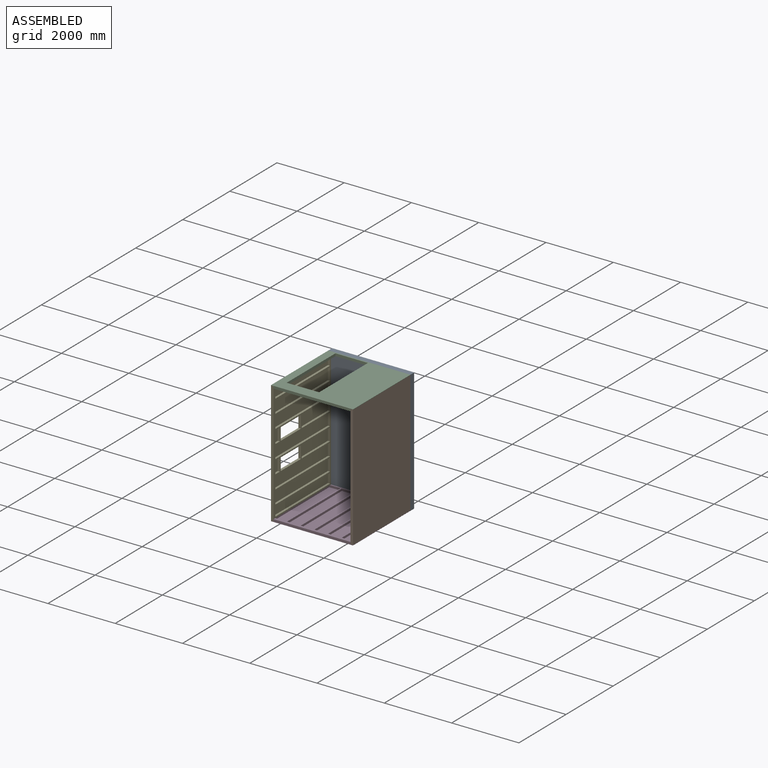
[diagram: assembled view]
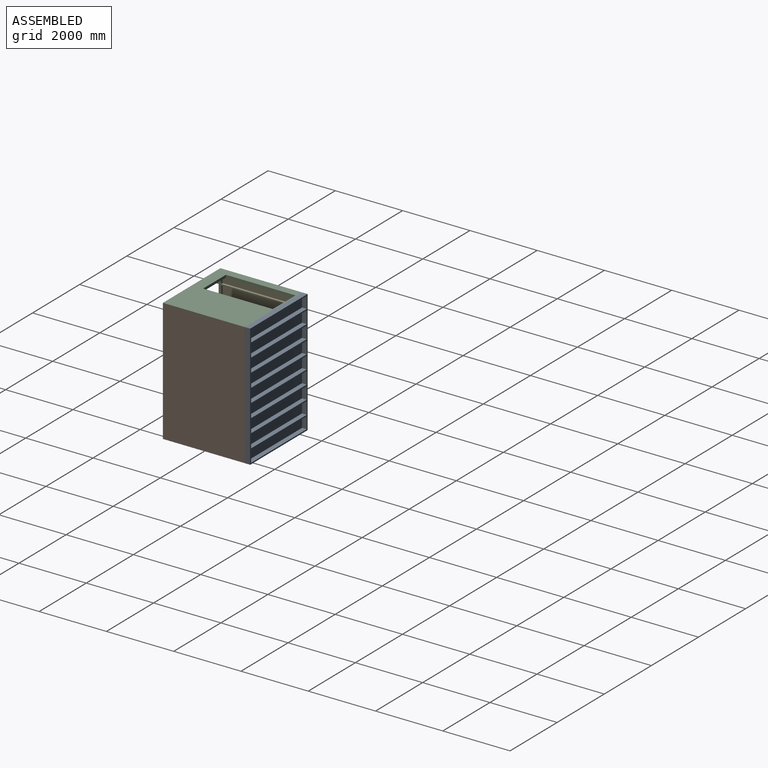
[diagram: assembled view, second angle]
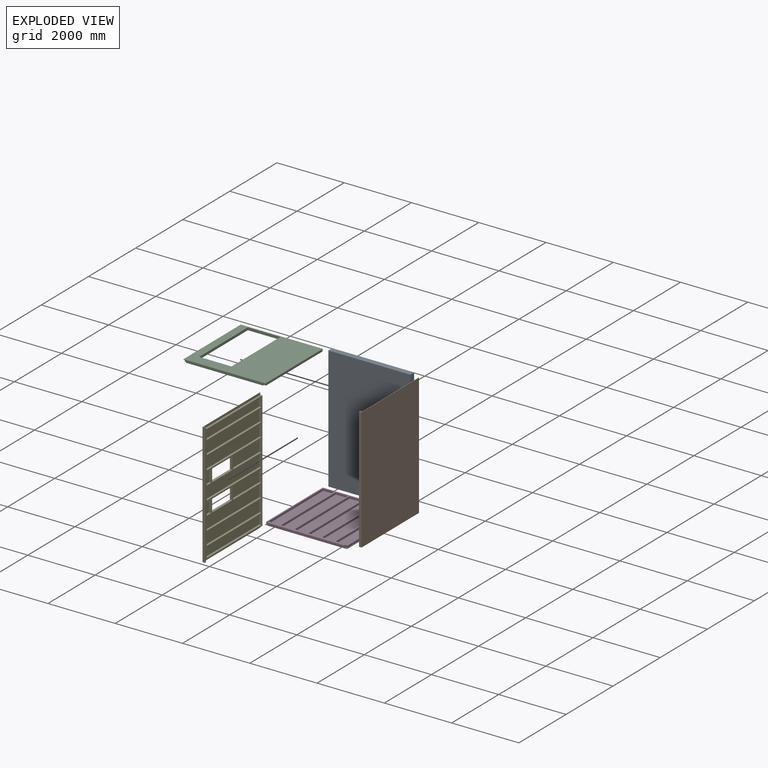
[diagram: exploded view]
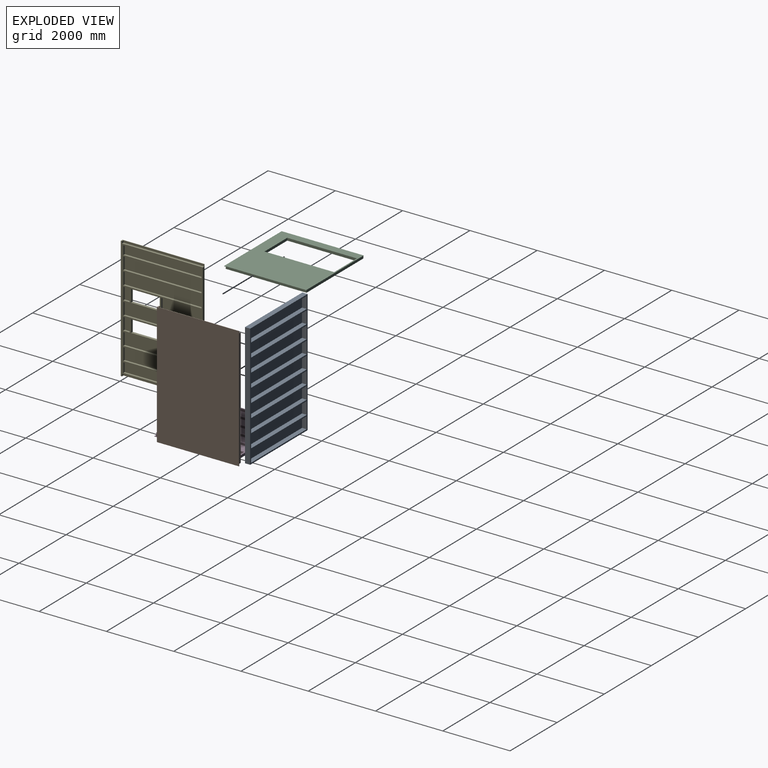
[diagram: exploded view, second angle]
ASSEMBLY  parts=5 mates=12
PART A: 51 faces, bbox 2438.4x3657.6x155.6 mm
  f0: plane 3657.6x155.58mm, normal (-1,0,0), area 569031.1mm2, adj f1,f3,f4,f41
  f1: plane 2438.4x155.58mm, normal (0,-1,0), area 379354.1mm2, adj f0,f2,f4,f41
  f2: plane 3657.6x155.58mm, normal (1,0,0), area 569031.1mm2, adj f1,f3,f4,f41
  f3: plane 2438.4x155.58mm, normal (0,1,0), area 379354.1mm2, adj f0,f2,f4,f41
  f4: plane 3657.6x2438.4mm, normal (0,0,1), area 8918691.8mm2, adj f0,f1,f2,f3
  f5: plane 2362.2x139.7mm, normal (0,-1,0), area 329999.3mm2, adj f6,f40,f41,f42
  f6: plane 349.25x139.7mm, normal (1,0,0), area 48790.2mm2, adj f5,f7,f41,f42
  f7: plane 2362.2x139.7mm, normal (0,1,0), area 329999.3mm2, adj f6,f40,f41,f42
  f8: plane 368.3x139.7mm, normal (1,0,0), area 51451.5mm2, adj f9,f32,f41,f50
  f9: plane 2362.2x139.7mm, normal (0,1,0), area 329999.3mm2, adj f8,f10,f41,f50
  f10: plane 368.3x139.7mm, normal (-1,0,0), area 51451.5mm2, adj f9,f32,f41,f50
  f11: plane 368.3x139.7mm, normal (1,0,0), area 51451.5mm2, adj f12,f33,f41,f49
  f12: plane 2362.2x139.7mm, normal (0,1,0), area 329999.3mm2, adj f11,f13,f41,f49
  f13: plane 368.3x139.7mm, normal (-1,0,0), area 51451.5mm2, adj f12,f33,f41,f49
  f14: plane 368.3x139.7mm, normal (1,0,0), area 51451.5mm2, adj f15,f34,f41,f48
  f15: plane 2362.2x139.7mm, normal (0,1,0), area 329999.3mm2, adj f14,f16,f41,f48
  f16: plane 368.3x139.7mm, normal (-1,0,0), area 51451.5mm2, adj f15,f34,f41,f48
  f17: plane 368.3x139.7mm, normal (1,0,0), area 51451.5mm2, adj f18,f35,f41,f47
  f18: plane 2362.2x139.7mm, normal (0,1,0), area 329999.3mm2, adj f17,f19,f41,f47
  f19: plane 368.3x139.7mm, normal (-1,0,0), area 51451.5mm2, adj f18,f35,f41,f47
  f20: plane 368.3x139.7mm, normal (1,0,0), area 51451.5mm2, adj f21,f36,f41,f46
  f21: plane 2362.2x139.7mm, normal (0,1,0), area 329999.3mm2, adj f20,f22,f41,f46
  f22: plane 368.3x139.7mm, normal (-1,0,0), area 51451.5mm2, adj f21,f36,f41,f46
  f23: plane 368.3x139.7mm, normal (1,0,0), area 51451.5mm2, adj f24,f37,f41,f45
  f24: plane 2362.2x139.7mm, normal (0,1,0), area 329999.3mm2, adj f23,f25,f41,f45
  f25: plane 368.3x139.7mm, normal (-1,0,0), area 51451.5mm2, adj f24,f37,f41,f45
  f26: plane 368.3x139.7mm, normal (1,0,0), area 51451.5mm2, adj f27,f38,f41,f44
  f27: plane 2362.2x139.7mm, normal (0,1,0), area 329999.3mm2, adj f26,f28,f41,f44
  f28: plane 368.3x139.7mm, normal (-1,0,0), area 51451.5mm2, adj f27,f38,f41,f44
  f29: plane 349.25x139.7mm, normal (1,0,0), area 48790.2mm2, adj f30,f39,f41,f43
  f30: plane 2362.2x139.7mm, normal (0,1,0), area 329999.3mm2, adj f29,f31,f41,f43
  f31: plane 349.25x139.7mm, normal (-1,0,0), area 48790.2mm2, adj f30,f39,f41,f43
  f32: plane 2362.2x139.7mm, normal (0,-1,0), area 329999.3mm2, adj f8,f10,f41,f50
  f33: plane 2362.2x139.7mm, normal (0,-1,0), area 329999.3mm2, adj f11,f13,f41,f49
  f34: plane 2362.2x139.7mm, normal (0,-1,0), area 329999.3mm2, adj f14,f16,f41,f48
  f35: plane 2362.2x139.7mm, normal (0,-1,0), area 329999.3mm2, adj f17,f19,f41,f47
  f36: plane 2362.2x139.7mm, normal (0,-1,0), area 329999.3mm2, adj f20,f22,f41,f46
  f37: plane 2362.2x139.7mm, normal (0,-1,0), area 329999.3mm2, adj f23,f25,f41,f45
  f38: plane 2362.2x139.7mm, normal (0,-1,0), area 329999.3mm2, adj f26,f28,f41,f44
  f39: plane 2362.2x139.7mm, normal (0,-1,0), area 329999.3mm2, adj f29,f31,f41,f43
  f40: plane 349.25x139.7mm, normal (-1,0,0), area 48790.2mm2, adj f5,f7,f41,f42
  f41: plane 3657.6x2438.4mm, normal (0,0,-1), area 1178707.3mm2, adj f0,f1,f2,f3,f5,f6,f7,f8
  f42: plane 2362.2x349.25mm, normal (0,0,-1), area 824998.4mm2, adj f5,f6,f7,f40
  f43: plane 2362.2x349.25mm, normal (0,0,-1), area 824998.3mm2, adj f29,f30,f31,f39
  f44: plane 2362.2x368.3mm, normal (0,0,-1), area 869998.3mm2, adj f26,f27,f28,f38
  f45: plane 2362.2x368.3mm, normal (0,0,-1), area 869998.3mm2, adj f23,f24,f25,f37
  f46: plane 2362.2x368.3mm, normal (0,0,-1), area 869998.3mm2, adj f20,f21,f22,f36
  f47: plane 2362.2x368.3mm, normal (0,0,-1), area 869998.3mm2, adj f17,f18,f19,f35
  f48: plane 2362.2x368.3mm, normal (0,0,-1), area 869998.3mm2, adj f14,f15,f16,f34
  f49: plane 2362.2x368.3mm, normal (0,0,-1), area 869998.3mm2, adj f11,f12,f13,f33
  f50: plane 2362.2x368.3mm, normal (0,0,-1), area 869998.3mm2, adj f8,f9,f10,f32
PART B: 57 faces, bbox 3632.2x75.4x2438.4 mm
  f0: plane 2400.3x63.5mm, normal (0,1,0), area 152419mm2, adj f2,f3,f36,f37
  f1: plane 2400.3x63.5mm, normal (0,1,0), area 152419mm2, adj f3,f4,f34,f35
  f2: plane 2438.4x75.41mm, normal (-1,0,0), area 31451.6mm2, adj f0,f3,f5,f6,f37,f47
  f3: plane 3632.2x75.41mm, normal (0,0,-1), area 265826.1mm2, adj f0,f1,f2,f4,f6,f35,f36,f47
  f4: plane 2438.4x75.41mm, normal (1,0,0), area 31451.6mm2, adj f1,f3,f5,f6,f34,f47
  f5: plane 3632.2x75.41mm, normal (0,0,1), area 273890.6mm2, adj f2,f4,f6,f47
  f6: plane 3632.2x2438.4mm, normal (0,-1,0), area 8856756.5mm2, adj f2,f3,f4,f5
  f7: plane 2324.1x63.5mm, normal (1,0,0), area 147580.3mm2, adj f8,f46,f47,f48
  f8: plane 368.3x63.5mm, normal (0,0,1), area 23387.1mm2, adj f7,f9,f47,f48
  f9: plane 2324.1x63.5mm, normal (-1,0,0), area 147580.3mm2, adj f8,f46,f47,f48
  f10: plane 368.3x63.5mm, normal (0,0,1), area 23387.1mm2, adj f11,f38,f47,f56
  f11: plane 2324.1x63.5mm, normal (-1,0,0), area 147580.3mm2, adj f10,f12,f47,f56
  f12: plane 368.3x63.5mm, normal (0,0,-1), area 23387.1mm2, adj f11,f38,f47,f56
  f13: plane 368.3x63.5mm, normal (0,0,1), area 23387.1mm2, adj f14,f39,f47,f55
  f14: plane 2324.1x63.5mm, normal (-1,0,0), area 147580.3mm2, adj f13,f15,f47,f55
  f15: plane 368.3x63.5mm, normal (0,0,-1), area 23387.1mm2, adj f14,f39,f47,f55
  f16: plane 368.3x63.5mm, normal (0,0,1), area 23387.1mm2, adj f17,f40,f47,f54
  f17: plane 2324.1x63.5mm, normal (-1,0,0), area 147580.3mm2, adj f16,f18,f47,f54
  f18: plane 368.3x63.5mm, normal (0,0,-1), area 23387.1mm2, adj f17,f40,f47,f54
  f19: plane 368.3x63.5mm, normal (0,0,1), area 23387mm2, adj f20,f41,f47,f53
  f20: plane 2324.1x63.5mm, normal (-1,0,0), area 147580.3mm2, adj f19,f21,f47,f53
  f21: plane 368.3x63.5mm, normal (0,0,-1), area 23387mm2, adj f20,f41,f47,f53
  f22: plane 368.3x63.5mm, normal (0,0,1), area 23387.1mm2, adj f23,f42,f47,f52
  f23: plane 2324.1x63.5mm, normal (-1,0,0), area 147580.3mm2, adj f22,f24,f47,f52
  f24: plane 368.3x63.5mm, normal (0,0,-1), area 23387.1mm2, adj f23,f42,f47,f52
  f25: plane 368.3x63.5mm, normal (0,0,1), area 23387mm2, adj f26,f43,f47,f51
  f26: plane 2324.1x63.5mm, normal (-1,0,0), area 147580.3mm2, adj f25,f27,f47,f51
  f27: plane 368.3x63.5mm, normal (0,0,-1), area 23387mm2, adj f26,f43,f47,f51
  f28: plane 2324.1x63.5mm, normal (1,0,0), area 147580.3mm2, adj f29,f44,f47,f50
  f29: plane 285.75x63.5mm, normal (0,0,1), area 18145.1mm2, adj f28,f30,f47,f50
  f30: plane 2324.1x63.5mm, normal (-1,0,0), area 147580.3mm2, adj f29,f44,f47,f50
  f31: plane 260.35x63.5mm, normal (0,0,1), area 16532.2mm2, adj f32,f45,f47,f49
  f32: plane 2324.1x63.5mm, normal (-1,0,0), area 147580.3mm2, adj f31,f33,f47,f49
  f33: plane 260.35x63.5mm, normal (0,0,-1), area 16532.2mm2, adj f32,f45,f47,f49
  f34: plane 63.5x63.5mm, normal (0,0,-1), area 4032.2mm2, adj f1,f4,f35,f47
  f35: plane 2400.3x63.5mm, normal (1,0,0), area 152419mm2, adj f1,f3,f34,f47
  f36: plane 2400.3x63.5mm, normal (-1,0,0), area 152419mm2, adj f0,f3,f37,f47
  f37: plane 63.5x63.5mm, normal (0,0,-1), area 4032.3mm2, adj f0,f2,f36,f47
  f38: plane 2324.1x63.5mm, normal (1,0,0), area 147580.3mm2, adj f10,f12,f47,f56
  f39: plane 2324.1x63.5mm, normal (1,0,0), area 147580.3mm2, adj f13,f15,f47,f55
  f40: plane 2324.1x63.5mm, normal (1,0,0), area 147580.3mm2, adj f16,f18,f47,f54
  f41: plane 2324.1x63.5mm, normal (1,0,0), area 147580.3mm2, adj f19,f21,f47,f53
  f42: plane 2324.1x63.5mm, normal (1,0,0), area 147580.3mm2, adj f22,f24,f47,f52
  f43: plane 2324.1x63.5mm, normal (1,0,0), area 147580.3mm2, adj f25,f27,f47,f51
  f44: plane 285.75x63.5mm, normal (0,0,-1), area 18145.1mm2, adj f28,f30,f47,f50
  f45: plane 2324.1x63.5mm, normal (1,0,0), area 147580.3mm2, adj f31,f33,f47,f49
  f46: plane 368.3x63.5mm, normal (0,0,-1), area 23387.1mm2, adj f7,f9,f47,f48
  f47: plane 3632.2x2438.4mm, normal (0,1,0), area 1290965.2mm2, adj f2,f3,f4,f5,f7,f8,f9,f10
  f48: plane 2324.1x368.3mm, normal (0,1,0), area 855966mm2, adj f7,f8,f9,f46
  f49: plane 2324.1x260.35mm, normal (0,1,0), area 605079.4mm2, adj f31,f32,f33,f45
  f50: plane 2324.1x285.75mm, normal (0,1,0), area 664111.6mm2, adj f28,f29,f30,f44
  f51: plane 2324.1x368.3mm, normal (0,1,0), area 855966mm2, adj f25,f26,f27,f43
  f52: plane 2324.1x368.3mm, normal (0,1,0), area 855966mm2, adj f22,f23,f24,f42
  f53: plane 2324.1x368.3mm, normal (0,1,0), area 855966mm2, adj f19,f20,f21,f41
  f54: plane 2324.1x368.3mm, normal (0,1,0), area 855966mm2, adj f16,f17,f18,f40
  f55: plane 2324.1x368.3mm, normal (0,1,0), area 855966mm2, adj f13,f14,f15,f39
  f56: plane 2324.1x368.3mm, normal (0,1,0), area 855966mm2, adj f10,f11,f12,f38
PART C: 53 faces, bbox 2438.4x75.4x2438.4 mm
  f0: plane 2438.4x75.41mm, normal (0,1,0), area 31451.6mm2, adj f2,f3,f5,f31,f32,f33
  f1: plane 2438.4x75.41mm, normal (0,1,0), area 31451.6mm2, adj f3,f4,f5,f34,f35,f36
  f2: plane 2438.4x11.91mm, normal (-1,0,0), area 29032.2mm2, adj f0,f3,f5,f6
  f3: plane 2438.4x75.41mm, normal (0,0,-1), area 182358.5mm2, adj f0,f1,f2,f4,f6,f31,f36,f45
  f4: plane 2438.4x11.91mm, normal (1,0,0), area 29032.2mm2, adj f1,f3,f5,f6
  f5: plane 2438.4x75.41mm, normal (0,0,1), area 174294mm2, adj f0,f1,f2,f4,f6,f33,f34,f45
  f6: plane 2438.4x2438.4mm, normal (0,-1,0), area 3947734mm2, adj f2,f3,f4,f5,f16,f17,f18,f39
  f7: plane 215.9x63.5mm, normal (-1,0,0), area 13709.6mm2, adj f8,f44,f45,f52
  f8: plane 298.45x63.5mm, normal (0,0,-1), area 18951.6mm2, adj f7,f9,f45,f52
  f9: plane 215.9x63.5mm, normal (1,0,0), area 13709.6mm2, adj f8,f44,f45,f52
  f10: plane 215.9x63.5mm, normal (-1,0,0), area 13709.6mm2, adj f11,f37,f45,f51
  f11: plane 292.1x63.5mm, normal (0,0,-1), area 18548.4mm2, adj f10,f12,f45,f51
  f12: plane 215.9x63.5mm, normal (1,0,0), area 13709.6mm2, adj f11,f37,f45,f51
  f13: plane 215.9x63.5mm, normal (-1,0,0), area 13709.6mm2, adj f14,f38,f45,f50
  f14: plane 298.45x63.5mm, normal (0,0,-1), area 18951.6mm2, adj f13,f15,f45,f50
  f15: plane 215.9x63.5mm, normal (1,0,0), area 13709.6mm2, adj f14,f38,f45,f50
  f16: plane 2070.1x75.41mm, normal (1,0,0), area 156098.5mm2, adj f6,f17,f39,f45
  f17: plane 965.2x75.41mm, normal (0,0,1), area 72782.1mm2, adj f6,f16,f18,f45
  f18: plane 2070.1x75.41mm, normal (-1,0,0), area 156098.5mm2, adj f6,f17,f39,f45
  f19: plane 330.2x63.5mm, normal (0,0,1), area 20967.7mm2, adj f20,f40,f45,f49
  f20: plane 2324.1x63.5mm, normal (-1,0,0), area 147580.3mm2, adj f19,f21,f45,f49
  f21: plane 330.2x63.5mm, normal (0,0,-1), area 20967.7mm2, adj f20,f40,f45,f49
  f22: plane 368.3x63.5mm, normal (0,0,1), area 23387mm2, adj f23,f41,f45,f48
  f23: plane 2324.1x63.5mm, normal (-1,0,0), area 147580.3mm2, adj f22,f24,f45,f48
  f24: plane 368.3x63.5mm, normal (0,0,-1), area 23387mm2, adj f23,f41,f45,f48
  f25: plane 146.84x63.5mm, normal (0,0,1), area 9324.6mm2, adj f26,f42,f45,f47
  f26: plane 2324.1x63.5mm, normal (-1,0,0), area 147580.3mm2, adj f25,f27,f45,f47
  f27: plane 146.84x63.5mm, normal (0,0,-1), area 9324.6mm2, adj f26,f42,f45,f47
  f28: plane 2324.1x63.5mm, normal (1,0,0), area 147580.3mm2, adj f29,f43,f45,f46
  f29: plane 337.34x63.5mm, normal (0,0,1), area 21421.3mm2, adj f28,f30,f45,f46
  f30: plane 2324.1x63.5mm, normal (-1,0,0), area 147580.3mm2, adj f29,f43,f45,f46
  f31: plane 2400.3x63.5mm, normal (-1,0,0), area 152419mm2, adj f0,f3,f32,f45
  f32: plane 63.5x63.5mm, normal (0,0,1), area 4032.2mm2, adj f0,f31,f33,f45
  f33: plane 63.5x38.1mm, normal (-1,0,0), area 2419.4mm2, adj f0,f5,f32,f45
  f34: plane 63.5x38.1mm, normal (1,0,0), area 2419.4mm2, adj f1,f5,f35,f45
  f35: plane 63.5x63.5mm, normal (0,0,1), area 4032.3mm2, adj f1,f34,f36,f45
  f36: plane 2400.3x63.5mm, normal (1,0,0), area 152419mm2, adj f1,f3,f35,f45
  f37: plane 292.1x63.5mm, normal (0,0,1), area 18548.4mm2, adj f10,f12,f45,f51
  f38: plane 298.45x63.5mm, normal (0,0,1), area 18951.6mm2, adj f13,f15,f45,f50
  f39: plane 965.2x75.41mm, normal (0,0,-1), area 72782.1mm2, adj f6,f16,f18,f45
  f40: plane 2324.1x63.5mm, normal (1,0,0), area 147580.3mm2, adj f19,f21,f45,f49
  f41: plane 2324.1x63.5mm, normal (1,0,0), area 147580.3mm2, adj f22,f24,f45,f48
  f42: plane 2324.1x63.5mm, normal (1,0,0), area 147580.3mm2, adj f25,f27,f45,f47
  f43: plane 337.34x63.5mm, normal (0,0,-1), area 21421.3mm2, adj f28,f30,f45,f46
  f44: plane 298.45x63.5mm, normal (0,0,1), area 18951.6mm2, adj f7,f9,f45,f52
  f45: plane 2438.4x2414.59mm, normal (0,1,0), area 944211.8mm2, adj f3,f5,f7,f8,f9,f10,f11,f12
  f46: plane 2324.1x337.34mm, normal (0,1,0), area 784020.6mm2, adj f28,f29,f30,f43
  f47: plane 2324.1x146.84mm, normal (0,1,0), area 341279.6mm2, adj f25,f26,f27,f42
  f48: plane 2324.1x368.3mm, normal (0,1,0), area 855966mm2, adj f22,f23,f24,f41
  f49: plane 2324.1x330.2mm, normal (0,1,0), area 767417.8mm2, adj f19,f20,f21,f40
  f50: plane 298.45x215.9mm, normal (0,1,0), area 64435.4mm2, adj f13,f14,f15,f38
  f51: plane 292.1x215.9mm, normal (0,1,0), area 63064.4mm2, adj f10,f11,f12,f37
  f52: plane 298.45x215.9mm, normal (0,1,0), area 64435.4mm2, adj f7,f8,f9,f44
PART D: 44 faces, bbox 2438.4x75.4x2438.4 mm
  f0: plane 2438.4x75.41mm, normal (0,1,0), area 31451.6mm2, adj f2,f3,f5,f25,f26,f27
  f1: plane 2438.4x75.41mm, normal (0,1,0), area 31451.6mm2, adj f3,f4,f5,f28,f29,f30
  f2: plane 2438.4x11.91mm, normal (-1,0,0), area 29032.2mm2, adj f0,f3,f5,f6
  f3: plane 2438.4x75.41mm, normal (0,0,-1), area 182358.5mm2, adj f0,f1,f2,f4,f6,f25,f30,f37
  f4: plane 2438.4x11.91mm, normal (1,0,0), area 29032.2mm2, adj f1,f3,f5,f6
  f5: plane 2438.4x75.41mm, normal (0,0,1), area 174294mm2, adj f0,f1,f2,f4,f6,f27,f28,f37
  f6: plane 2438.4x2438.4mm, normal (0,-1,0), area 5945794.6mm2, adj f2,f3,f4,f5
  f7: plane 2324.1x63.5mm, normal (1,0,0), area 147580.3mm2, adj f8,f36,f37,f38
  f8: plane 368.3x63.5mm, normal (0,0,1), area 23387.1mm2, adj f7,f9,f37,f38
  f9: plane 2324.1x63.5mm, normal (-1,0,0), area 147580.3mm2, adj f8,f36,f37,f38
  f10: plane 368.3x63.5mm, normal (0,0,1), area 23387mm2, adj f11,f31,f37,f43
  f11: plane 2324.1x63.5mm, normal (-1,0,0), area 147580.3mm2, adj f10,f12,f37,f43
  f12: plane 368.3x63.5mm, normal (0,0,-1), area 23387mm2, adj f11,f31,f37,f43
  f13: plane 368.3x63.5mm, normal (0,0,1), area 23387.1mm2, adj f14,f32,f37,f42
  f14: plane 2324.1x63.5mm, normal (-1,0,0), area 147580.3mm2, adj f13,f15,f37,f42
  f15: plane 368.3x63.5mm, normal (0,0,-1), area 23387.1mm2, adj f14,f32,f37,f42
  f16: plane 368.3x63.5mm, normal (0,0,1), area 23387mm2, adj f17,f33,f37,f41
  f17: plane 2324.1x63.5mm, normal (-1,0,0), area 147580.3mm2, adj f16,f18,f37,f41
  f18: plane 368.3x63.5mm, normal (0,0,-1), area 23387mm2, adj f17,f33,f37,f41
  f19: plane 337.34x63.5mm, normal (0,0,1), area 21421.3mm2, adj f20,f34,f37,f40
  f20: plane 2324.1x63.5mm, normal (-1,0,0), area 147580.3mm2, adj f19,f21,f37,f40
  f21: plane 337.34x63.5mm, normal (0,0,-1), area 21421.3mm2, adj f20,f34,f37,f40
  f22: plane 2324.1x63.5mm, normal (1,0,0), area 147580.3mm2, adj f23,f35,f37,f39
  f23: plane 337.34x63.5mm, normal (0,0,1), area 21421.3mm2, adj f22,f24,f37,f39
  f24: plane 2324.1x63.5mm, normal (-1,0,0), area 147580.3mm2, adj f23,f35,f37,f39
  f25: plane 2400.3x63.5mm, normal (-1,0,0), area 152419mm2, adj f0,f3,f26,f37
  f26: plane 63.5x63.5mm, normal (0,0,1), area 4032.2mm2, adj f0,f25,f27,f37
  f27: plane 63.5x38.1mm, normal (-1,0,0), area 2419.4mm2, adj f0,f5,f26,f37
  f28: plane 63.5x38.1mm, normal (1,0,0), area 2419.4mm2, adj f1,f5,f29,f37
  f29: plane 63.5x63.5mm, normal (0,0,1), area 4032.3mm2, adj f1,f28,f30,f37
  f30: plane 2400.3x63.5mm, normal (1,0,0), area 152419mm2, adj f1,f3,f29,f37
  f31: plane 2324.1x63.5mm, normal (1,0,0), area 147580.3mm2, adj f10,f12,f37,f43
  f32: plane 2324.1x63.5mm, normal (1,0,0), area 147580.3mm2, adj f13,f15,f37,f42
  f33: plane 2324.1x63.5mm, normal (1,0,0), area 147580.3mm2, adj f16,f18,f37,f41
  f34: plane 2324.1x63.5mm, normal (1,0,0), area 147580.3mm2, adj f19,f21,f37,f40
  f35: plane 337.34x63.5mm, normal (0,0,-1), area 21421.3mm2, adj f22,f24,f37,f39
  f36: plane 368.3x63.5mm, normal (0,0,-1), area 23387.1mm2, adj f7,f9,f37,f38
  f37: plane 2438.4x2414.59mm, normal (0,1,0), area 890986.1mm2, adj f3,f5,f7,f8,f9,f10,f11,f12
  f38: plane 2324.1x368.3mm, normal (0,1,0), area 855966mm2, adj f7,f8,f9,f36
  f39: plane 2324.1x337.34mm, normal (0,1,0), area 784020.6mm2, adj f22,f23,f24,f35
  f40: plane 2324.1x337.34mm, normal (0,1,0), area 784020.6mm2, adj f19,f20,f21,f34
  f41: plane 2324.1x368.3mm, normal (0,1,0), area 855966mm2, adj f16,f17,f18,f33
  f42: plane 2324.1x368.3mm, normal (0,1,0), area 855966mm2, adj f13,f14,f15,f32
  f43: plane 2324.1x368.3mm, normal (0,1,0), area 855966mm2, adj f10,f11,f12,f31
PART E: 75 faces, bbox 3632.2x75.4x2438.4 mm
  f0: plane 3632.2x2438.4mm, normal (0,-1,0), area 8225306.1mm2, adj f3,f4,f5,f6,f7,f8,f9,f10
  f1: plane 2400.3x63.5mm, normal (0,1,0), area 152419mm2, adj f3,f4,f48,f49
  f2: plane 2400.3x63.5mm, normal (0,1,0), area 152419mm2, adj f4,f5,f46,f47
  f3: plane 2438.4x75.41mm, normal (-1,0,0), area 31451.6mm2, adj f0,f1,f4,f6,f49,f63
  f4: plane 3632.2x75.41mm, normal (0,0,-1), area 265826.1mm2, adj f0,f1,f2,f3,f5,f47,f48,f63
  f5: plane 2438.4x75.41mm, normal (1,0,0), area 31451.6mm2, adj f0,f2,f4,f6,f46,f63
  f6: plane 3632.2x75.41mm, normal (0,0,1), area 273890.6mm2, adj f0,f3,f5,f63
  f7: plane 368.3x75.41mm, normal (0,0,1), area 27772.1mm2, adj f0,f8,f62,f63
  f8: plane 857.25x75.41mm, normal (-1,0,0), area 64642mm2, adj f0,f7,f9,f63
  f9: plane 368.3x75.41mm, normal (0,0,-1), area 27772.1mm2, adj f0,f8,f62,f63
  f10: plane 368.3x75.41mm, normal (0,0,1), area 27772.1mm2, adj f0,f11,f50,f63
  f11: plane 857.25x75.41mm, normal (-1,0,0), area 64642mm2, adj f0,f10,f12,f63
  f12: plane 368.3x75.41mm, normal (0,0,-1), area 27772.1mm2, adj f0,f11,f50,f63
  f13: plane 190.5x63.5mm, normal (-1,0,0), area 12096.8mm2, adj f14,f51,f63,f74
  f14: plane 368.3x63.5mm, normal (0,0,-1), area 23387.1mm2, adj f13,f15,f63,f74
  f15: plane 190.5x63.5mm, normal (1,0,0), area 12096.8mm2, adj f14,f51,f63,f74
  f16: plane 190.5x63.5mm, normal (-1,0,0), area 12096.8mm2, adj f17,f52,f63,f73
  f17: plane 368.3x63.5mm, normal (0,0,-1), area 23387mm2, adj f16,f18,f63,f73
  f18: plane 190.5x63.5mm, normal (1,0,0), area 12096.8mm2, adj f17,f52,f63,f73
  f19: plane 2324.1x63.5mm, normal (1,0,0), area 147580.3mm2, adj f20,f53,f63,f72
  f20: plane 368.3x63.5mm, normal (0,0,1), area 23387.1mm2, adj f19,f21,f63,f72
  f21: plane 2324.1x63.5mm, normal (-1,0,0), area 147580.3mm2, adj f20,f53,f63,f72
  f22: plane 368.3x63.5mm, normal (0,0,1), area 23387.1mm2, adj f23,f54,f63,f71
  f23: plane 2324.1x63.5mm, normal (-1,0,0), area 147580.3mm2, adj f22,f24,f63,f71
  f24: plane 368.3x63.5mm, normal (0,0,-1), area 23387.1mm2, adj f23,f54,f63,f71
  f25: plane 368.3x63.5mm, normal (0,0,1), area 23387mm2, adj f26,f55,f63,f70
  f26: plane 1200.15x63.5mm, normal (-1,0,0), area 76209.5mm2, adj f25,f27,f63,f70
  f27: plane 368.3x63.5mm, normal (0,0,-1), area 23387mm2, adj f26,f55,f63,f70
  f28: plane 368.3x63.5mm, normal (0,0,1), area 23387mm2, adj f29,f56,f63,f69
  f29: plane 2324.1x63.5mm, normal (-1,0,0), area 147580.3mm2, adj f28,f30,f63,f69
  f30: plane 368.3x63.5mm, normal (0,0,-1), area 23387mm2, adj f29,f56,f63,f69
  f31: plane 368.3x63.5mm, normal (0,0,1), area 23387.1mm2, adj f32,f57,f63,f68
  f32: plane 1200.15x63.5mm, normal (-1,0,0), area 76209.5mm2, adj f31,f33,f63,f68
  f33: plane 368.3x63.5mm, normal (0,0,-1), area 23387.1mm2, adj f32,f57,f63,f68
  f34: plane 368.3x63.5mm, normal (0,0,1), area 23387mm2, adj f35,f58,f63,f67
  f35: plane 2324.1x63.5mm, normal (-1,0,0), area 147580.3mm2, adj f34,f36,f63,f67
  f36: plane 368.3x63.5mm, normal (0,0,-1), area 23387mm2, adj f35,f58,f63,f67
  f37: plane 368.3x63.5mm, normal (0,0,1), area 23387mm2, adj f38,f59,f63,f66
  f38: plane 2324.1x63.5mm, normal (-1,0,0), area 147580.3mm2, adj f37,f39,f63,f66
  f39: plane 368.3x63.5mm, normal (0,0,-1), area 23387mm2, adj f38,f59,f63,f66
  f40: plane 2324.1x63.5mm, normal (1,0,0), area 147580.3mm2, adj f41,f60,f63,f65
  f41: plane 260.35x63.5mm, normal (0,0,1), area 16532.2mm2, adj f40,f42,f63,f65
  f42: plane 2324.1x63.5mm, normal (-1,0,0), area 147580.3mm2, adj f41,f60,f63,f65
  f43: plane 285.75x63.5mm, normal (0,0,1), area 18145.1mm2, adj f44,f61,f63,f64
  f44: plane 2324.1x63.5mm, normal (-1,0,0), area 147580.3mm2, adj f43,f45,f63,f64
  f45: plane 285.75x63.5mm, normal (0,0,-1), area 18145.1mm2, adj f44,f61,f63,f64
  f46: plane 63.5x63.5mm, normal (0,0,-1), area 4032.2mm2, adj f2,f5,f47,f63
  f47: plane 2400.3x63.5mm, normal (1,0,0), area 152419mm2, adj f2,f4,f46,f63
  f48: plane 2400.3x63.5mm, normal (-1,0,0), area 152419mm2, adj f1,f4,f49,f63
  f49: plane 63.5x63.5mm, normal (0,0,-1), area 4032.3mm2, adj f1,f3,f48,f63
  f50: plane 857.25x75.41mm, normal (1,0,0), area 64642mm2, adj f0,f10,f12,f63
  f51: plane 368.3x63.5mm, normal (0,0,1), area 23387.1mm2, adj f13,f15,f63,f74
  f52: plane 368.3x63.5mm, normal (0,0,1), area 23387mm2, adj f16,f18,f63,f73
  f53: plane 368.3x63.5mm, normal (0,0,-1), area 23387.1mm2, adj f19,f21,f63,f72
  f54: plane 2324.1x63.5mm, normal (1,0,0), area 147580.3mm2, adj f22,f24,f63,f71
  f55: plane 1200.15x63.5mm, normal (1,0,0), area 76209.5mm2, adj f25,f27,f63,f70
  f56: plane 2324.1x63.5mm, normal (1,0,0), area 147580.3mm2, adj f28,f30,f63,f69
  f57: plane 1200.15x63.5mm, normal (1,0,0), area 76209.5mm2, adj f31,f33,f63,f68
  f58: plane 2324.1x63.5mm, normal (1,0,0), area 147580.3mm2, adj f34,f36,f63,f67
  f59: plane 2324.1x63.5mm, normal (1,0,0), area 147580.3mm2, adj f37,f39,f63,f66
  f60: plane 260.35x63.5mm, normal (0,0,-1), area 16532.2mm2, adj f40,f42,f63,f65
  f61: plane 2324.1x63.5mm, normal (1,0,0), area 147580.3mm2, adj f43,f45,f63,f64
  f62: plane 857.25x75.41mm, normal (1,0,0), area 64642mm2, adj f0,f7,f9,f63
  f63: plane 3632.2x2438.4mm, normal (0,1,0), area 1347094.1mm2, adj f3,f4,f5,f6,f7,f8,f9,f10
  f64: plane 2324.1x285.75mm, normal (0,1,0), area 664111.6mm2, adj f43,f44,f45,f61
  f65: plane 2324.1x260.35mm, normal (0,1,0), area 605079.4mm2, adj f40,f41,f42,f60
  f66: plane 2324.1x368.3mm, normal (0,1,0), area 855966mm2, adj f37,f38,f39,f59
  f67: plane 2324.1x368.3mm, normal (0,1,0), area 855966mm2, adj f34,f35,f36,f58
  f68: plane 1200.15x368.3mm, normal (0,1,0), area 442015.2mm2, adj f31,f32,f33,f57
  f69: plane 2324.1x368.3mm, normal (0,1,0), area 855966mm2, adj f28,f29,f30,f56
  f70: plane 1200.15x368.3mm, normal (0,1,0), area 442015.2mm2, adj f25,f26,f27,f55
  f71: plane 2324.1x368.3mm, normal (0,1,0), area 855966mm2, adj f22,f23,f24,f54
  f72: plane 2324.1x368.3mm, normal (0,1,0), area 855966mm2, adj f19,f20,f21,f53
  f73: plane 368.3x190.5mm, normal (0,1,0), area 70161.1mm2, adj f16,f17,f18,f52
  f74: plane 368.3x190.5mm, normal (0,1,0), area 70161.2mm2, adj f13,f14,f15,f51
PLACE A rot(axis=(0,0.71,-0.71),180deg) t=(6263.17,1317.25,784.92)mm
PLACE B rot(axis=(0.58,-0.58,0.58),120deg) t=(6251.27,1301.37,-2859.19)mm
PLACE C rot(axis=(0,0.71,-0.71),180deg) t=(6263.17,1301.37,773.01)mm
PLACE D rot(axis=(1,0,0),90deg) t=(3824.77,1301.37,-2860.78)mm
PLACE E rot(axis=(0.58,0.58,-0.58),120deg) t=(3836.68,1301.37,771.42)mm
MATE planar B.f4 <-> C.f0  axis (0,0,1) through (6254.32,-10.15,773.01)mm
MATE planar E.f4 <-> A.f4  axis (0,1,0) through (3862.3,1301.37,-1044.68)mm
MATE planar E.f0 <-> A.f2  axis (-1,0,0) through (3824.77,119.46,-1045.65)mm
MATE planar D.f3 <-> A.f4  axis (0,1,0) through (5043.97,1301.37,-2835.03)mm
MATE planar C.f2 <-> A.f0  axis (1,0,0) through (6263.17,82.17,778.96)mm
MATE planar A.f0 <-> B.f6  axis (1,0,0) through (6263.17,1379.16,-1043.88)mm
MATE planar C.f3 <-> A.f4  axis (0,1,0) through (5043.97,1301.37,747.26)mm
MATE planar D.f6 <-> A.f3  axis (0,0,-1) through (5043.97,82.17,-2872.68)mm
MATE planar A.f1 <-> C.f6  axis (0,0,1) through (5043.97,1379.16,784.92)mm
MATE planar B.f3 <-> A.f4  axis (0,1,0) through (6225.65,1301.37,-1043.09)mm
MATE planar E.f5 <-> D.f0  axis (0,0,-1) through (3833.63,-10.15,-2860.78)mm
MATE planar D.f2 <-> A.f2  axis (-1,0,0) through (3824.77,1301.37,-2860.78)mm
